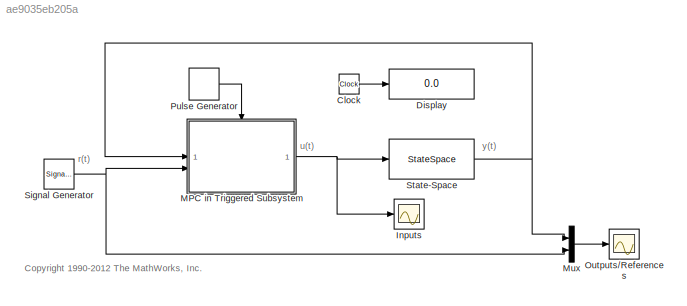
MODEL slx_ae9035eb205a
KIND model
CONFIG AbsTol = auto
CONFIG EnableMultiTasking = off
CONFIG FixedStep = auto
CONFIG MaxStep = auto
CONFIG MinStep = auto
CONFIG RelTol = 1e-3
CONFIG SampleTimeConstraint = Unconstrained
CONFIG SolverName = ode3
CONFIG StartTime = 0.0
CONFIG StopTime = 10
BLOCK [Clock] Clock
BLOCK [Display] Display
  Decimation = 1
BLOCK [Scope] Inputs
  Floating = off
  NumInputPorts = 1
  ScopeSpecificationString = Simulink.scopes.TimeScopeBlockCfg('CurrentConfiguration', extmgr.ConfigurationSet(extmgr.Configuration('Core','General UI',true,'FigureColor',[0.156862745098039 0.156862745098039 0.156862745098039]),extmgr.Configuration('Core','Source UI',true),extmgr.Configuration('Sources','WiredSimulink',true,'DataLoggingSaveFormat','Structure','DataLoggingDecimation','1','DataLoggingDecimateData',true),extmgr....<+2733ch>
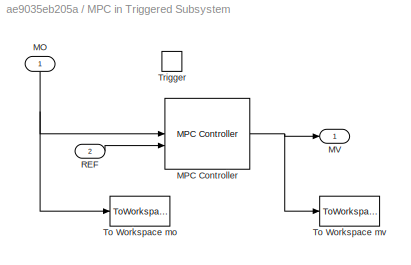
BLOCK [SubSystem] MPC in Triggered Subsystem
BLOCK [Inport] MPC in Triggered Subsystem/MO
  NameLocation = left
BLOCK [Reference] MPC in Triggered Subsystem/MPC Controller  REF=mpclib/MPC Controller  (lib defined in mdl_ae329e0e0455)
  NameLocation = top
  SourceBlock = mpclib/MPC Controller
  SourceType = MPC
BLOCK [Outport] MPC in Triggered Subsystem/MV
  VectorParamsAs1DForOutWhenUnconnected = off
BLOCK [Inport] MPC in Triggered Subsystem/REF
  Port = 2
BLOCK [ToWorkspace] MPC in Triggered Subsystem/To Workspace mo
  MaxDataPoints = Inf
  SampleTime = -1
  VariableName = y_tr
BLOCK [ToWorkspace] MPC in Triggered Subsystem/To Workspace mv
  MaxDataPoints = Inf
  SampleTime = -1
  VariableName = u_tr
BLOCK [TriggerPort] MPC in Triggered Subsystem/Trigger
  PortDimensions = 1
  StatesWhenEnabling = held
  TriggerType = falling
  VariantControl = Variant
BLOCK [Mux] Mux
  DisplayOption = bar
  Inputs = 2
BLOCK [Scope] Outputs//References
  Floating = off
  NumInputPorts = 1
  ScopeSpecificationString = Simulink.scopes.TimeScopeBlockCfg('CurrentConfiguration', extmgr.ConfigurationSet(extmgr.Configuration('Core','General UI',true,'FigureColor',[0.156862745098039 0.156862745098039 0.156862745098039]),extmgr.Configuration('Core','Source UI',true),extmgr.Configuration('Sources','WiredSimulink',true,'DataLoggingSaveFormat','Structure','DataLoggingDecimation','1','DataLoggingDecimateData',true),extmgr....<+2725ch>
BLOCK [DiscretePulseGenerator] Pulse Generator
  NameLocation = left
  Period = 0.1
  PhaseDelay = -1
  PulseType = Time based
  PulseWidth = 0.01
BLOCK [SignalGenerator] Signal Generator
  Frequency = .4
BLOCK [StateSpace] State-Space
  A = plant.A
  B = plant.B
  C = plant.C
  D = plant.D
  InitialCondition = [0;0]
ANNOTATION (root): <copyright redacted>
ANNOTATION (root): r(t)
ANNOTATION (root): u(t)
ANNOTATION (root): y(t)
LINE Clock:1 -> Display:1
NET MPC in Triggered Subsystem/MO:1 -> MPC in Triggered Subsystem/MPC Controller:1, MPC in Triggered Subsystem/To Workspace mo:1
NET MPC in Triggered Subsystem/MPC Controller:1 -> MPC in Triggered Subsystem/MV:1, MPC in Triggered Subsystem/To Workspace mv:1
LINE MPC in Triggered Subsystem/REF:1 -> MPC in Triggered Subsystem/MPC Controller:2
NET MPC in Triggered Subsystem:1 -> Inputs:1, State-Space:1
LINE Mux:1 -> Outputs//References:1
LINE Pulse Generator:1 -> MPC in Triggered Subsystem:trigger
NET Signal Generator:1 -> MPC in Triggered Subsystem:2, Mux:2
NET State-Space:1 -> MPC in Triggered Subsystem:1, Mux:1
note: NET lines group one-source signal fan-out (src -> all destinations, sorted); 1:1 wires keep LINE
